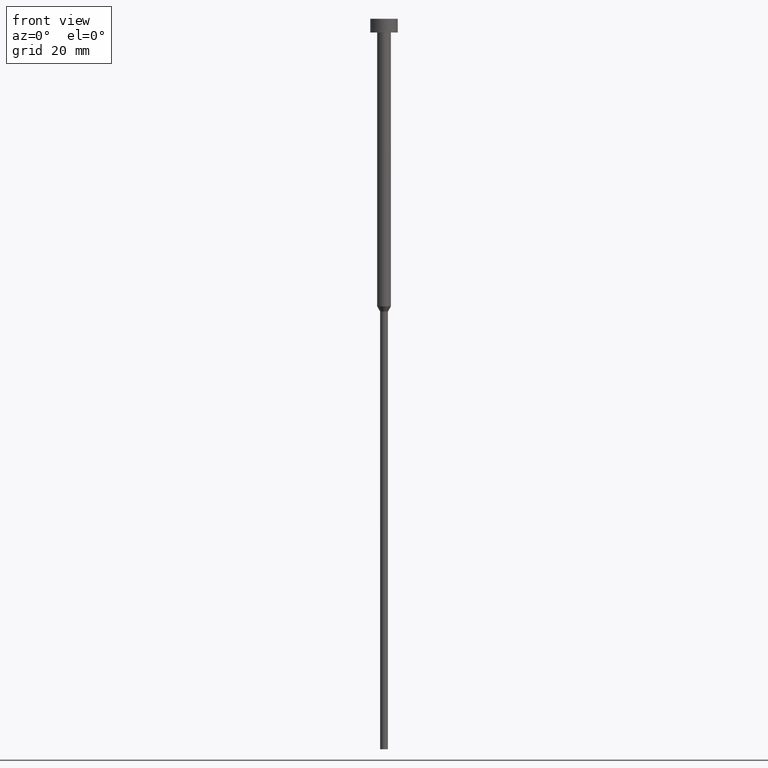
[diagram: clean part render]
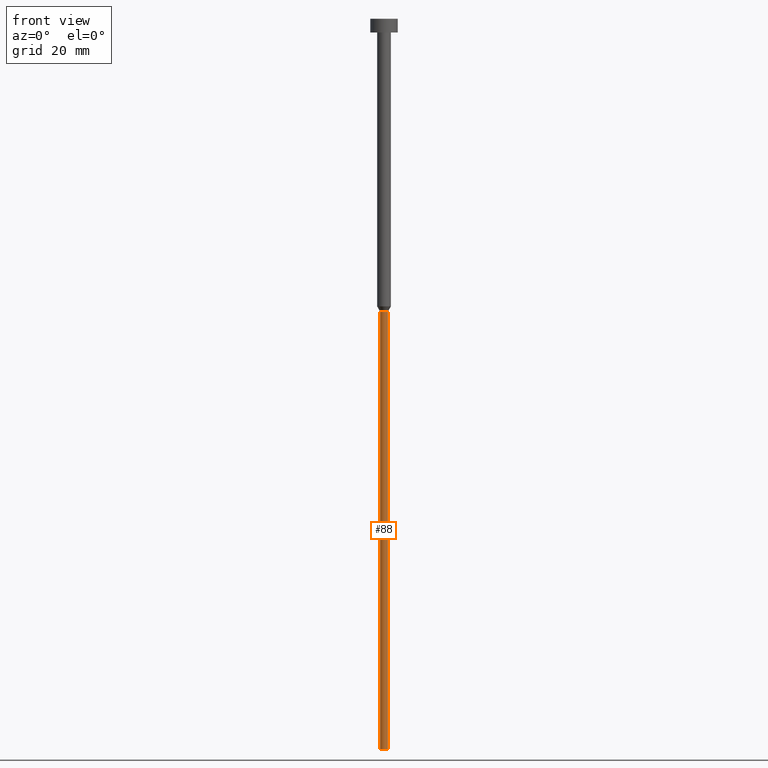
[diagram: same view with one face highlighted and labeled with its STEP entity id]
A machine part, front view. The second image highlights one B-rep face of the part: STEP entity #88.
In plain terms, the highlighted cylindrical surface (edge-blend (fillet) strip) has radius 0.85 mm, axis along (-0, -0, 1).
Its self-contained STEP definition (entity closure, byte-faithful):
#47 = ORIENTED_EDGE ( 'NONE', *, *, #106, .F. ) ;
#49 = CARTESIAN_POINT ( 'NONE',  ( 0.000000000000000000, 0.000000000000000000, -160.0000000000000000 ) ) ;
#59 = EDGE_CURVE ( 'NONE', #78, #185, #69, .T. ) ;
#69 = LINE ( 'NONE', #74, #301 ) ;
#74 = CARTESIAN_POINT ( 'NONE',  ( -0.8499999999999998668, 1.040949779275250017E-16, 0.000000000000000000 ) ) ;
#77 = CARTESIAN_POINT ( 'NONE',  ( 0.000000000000000000, 0.000000000000000000, -64.12583302491977122 ) ) ;
#78 = VERTEX_POINT ( 'NONE', #289 ) ;
#88 = ADVANCED_FACE ( 'NONE', ( #95 ), #345, .T. ) ;
#90 = CARTESIAN_POINT ( 'NONE',  ( 0.8499999999999999778, 0.000000000000000000, -64.12583302491977122 ) ) ;
#95 = FACE_OUTER_BOUND ( 'NONE', #317, .T. ) ;
#100 = DIRECTION ( 'NONE',  ( 1.000000000000000000, 0.000000000000000000, 0.000000000000000000 ) ) ;
#106 = EDGE_CURVE ( 'NONE', #185, #354, #214, .T. ) ;
#107 = ORIENTED_EDGE ( 'NONE', *, *, #247, .T. ) ;
#109 = VECTOR ( 'NONE', #248, 1000.000000000000000 ) ;
#115 = CARTESIAN_POINT ( 'NONE',  ( 0.8499999999999998668, 0.000000000000000000, 0.000000000000000000 ) ) ;
#121 = AXIS2_PLACEMENT_3D ( 'NONE', #176, #319, #100 ) ;
#140 = DIRECTION ( 'NONE',  ( 1.000000000000000000, 0.000000000000000000, 0.000000000000000000 ) ) ;
#142 = AXIS2_PLACEMENT_3D ( 'NONE', #49, #193, #140 ) ;
#161 = CARTESIAN_POINT ( 'NONE',  ( -0.8500000000000000888, 1.040949779275250263E-16, -64.12583302491977122 ) ) ;
#174 = LINE ( 'NONE', #115, #109 ) ;
#176 = CARTESIAN_POINT ( 'NONE',  ( 0.000000000000000000, 0.000000000000000000, 0.000000000000000000 ) ) ;
#185 = VERTEX_POINT ( 'NONE', #161 ) ;
#193 = DIRECTION ( 'NONE',  ( -0.000000000000000000, -0.000000000000000000, 1.000000000000000000 ) ) ;
#206 = ORIENTED_EDGE ( 'NONE', *, *, #59, .F. ) ;
#213 = VERTEX_POINT ( 'NONE', #320 ) ;
#214 = CIRCLE ( 'NONE', #267, 0.8499999999999999778 ) ;
#218 = EDGE_CURVE ( 'NONE', #78, #213, #226, .T. ) ;
#226 = CIRCLE ( 'NONE', #142, 0.8499999999999998668 ) ;
#247 = EDGE_CURVE ( 'NONE', #213, #354, #174, .T. ) ;
#248 = DIRECTION ( 'NONE',  ( -0.000000000000000000, -0.000000000000000000, 1.000000000000000000 ) ) ;
#267 = AXIS2_PLACEMENT_3D ( 'NONE', #77, #316, #308 ) ;
#289 = CARTESIAN_POINT ( 'NONE',  ( -0.8499999999999998668, 1.040949779275250017E-16, -160.0000000000000000 ) ) ;
#301 = VECTOR ( 'NONE', #309, 1000.000000000000000 ) ;
#308 = DIRECTION ( 'NONE',  ( 1.000000000000000000, 0.000000000000000000, 0.000000000000000000 ) ) ;
#309 = DIRECTION ( 'NONE',  ( -0.000000000000000000, -0.000000000000000000, 1.000000000000000000 ) ) ;
#316 = DIRECTION ( 'NONE',  ( -0.000000000000000000, -0.000000000000000000, 1.000000000000000000 ) ) ;
#317 = EDGE_LOOP ( 'NONE', ( #206, #321, #107, #47 ) ) ;
#319 = DIRECTION ( 'NONE',  ( -0.000000000000000000, -0.000000000000000000, 1.000000000000000000 ) ) ;
#320 = CARTESIAN_POINT ( 'NONE',  ( 0.8499999999999998668, 0.000000000000000000, -160.0000000000000000 ) ) ;
#321 = ORIENTED_EDGE ( 'NONE', *, *, #218, .T. ) ;
#345 = CYLINDRICAL_SURFACE ( 'NONE', #121, 0.8499999999999998668 ) ;
#354 = VERTEX_POINT ( 'NONE', #90 ) ;